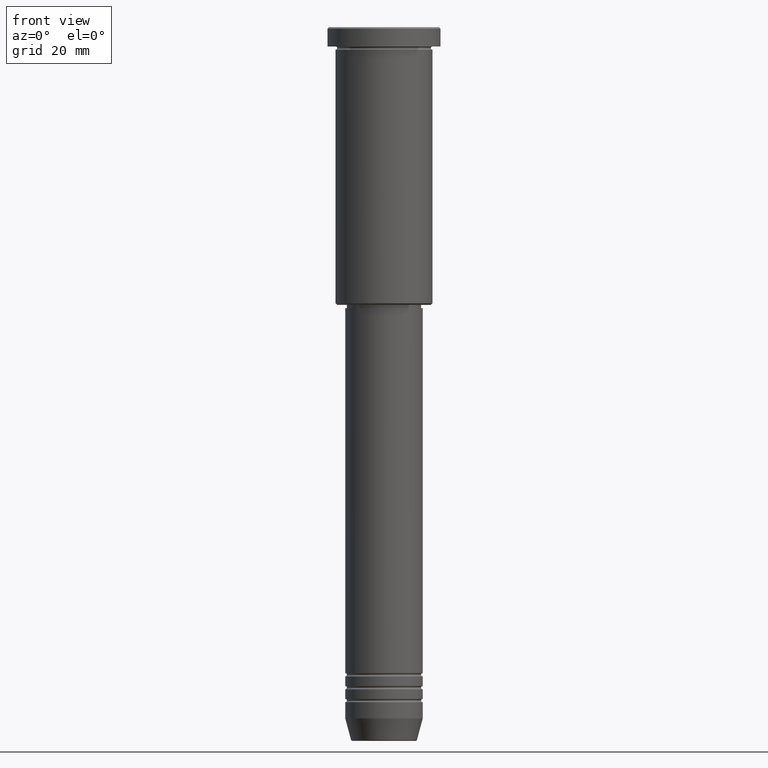
[diagram: clean part render]
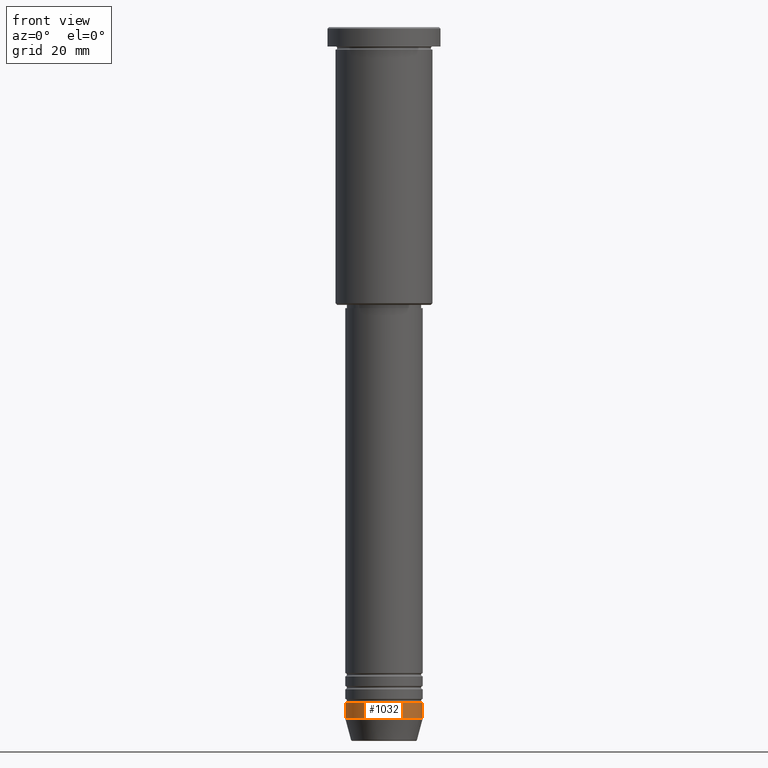
[diagram: same view with one face highlighted and labeled with its STEP entity id]
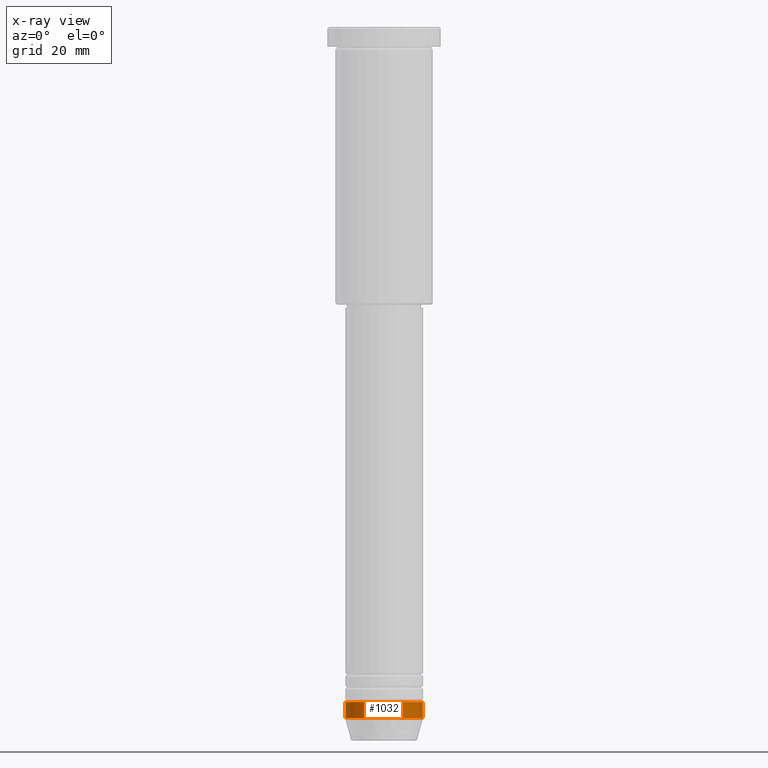
[diagram: x-ray of the same camera — body ghosted, the highlighted face saturated]
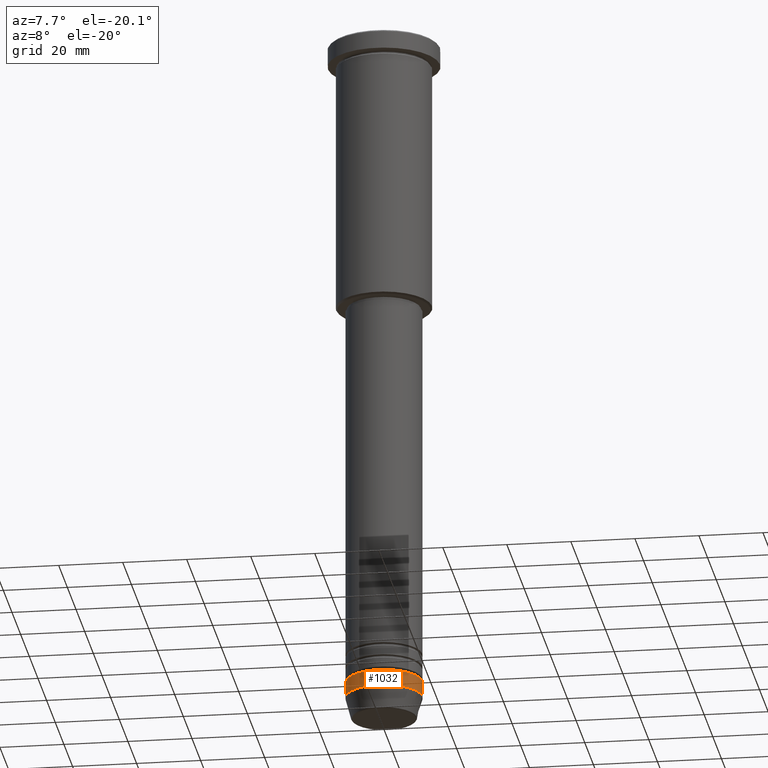
[diagram: same view with one face highlighted and labeled with its STEP entity id]
A machine part, front view. The second image highlights one B-rep face of the part: STEP entity #1032.
The next image is the same camera in x-ray: the body ghosted, the highlighted face saturated — about 0% of this face is hidden behind the body in this view.
A second angle (auxiliary view) of the same face is appended — the face is thin or edge-on in the first view.
In plain terms, the highlighted cylindrical surface (partial cylindrical patch) has radius 12 mm, axis along (-0, -0, 1).
Its self-contained STEP definition (entity closure, byte-faithful):
#14 = AXIS2_PLACEMENT_3D ( 'NONE', #794, #256, #996 ) ;
#91 = CIRCLE ( 'NONE', #14, 12.00000000000000000 ) ;
#160 = EDGE_CURVE ( 'NONE', #961, #826, #588, .T. ) ;
#189 = CARTESIAN_POINT ( 'NONE',  ( -12.00000000000000000, 1.469576158976823947E-15, -209.0000000000000568 ) ) ;
#195 = CIRCLE ( 'NONE', #347, 12.00000000000000000 ) ;
#201 = LINE ( 'NONE', #288, #270 ) ;
#211 = VECTOR ( 'NONE', #797, 1000.000000000000000 ) ;
#226 = CARTESIAN_POINT ( 'NONE',  ( -12.00000000000000000, 1.469576158976823947E-15, -214.0000000000000284 ) ) ;
#253 = AXIS2_PLACEMENT_3D ( 'NONE', #765, #486, #595 ) ;
#256 = DIRECTION ( 'NONE',  ( -0.000000000000000000, -0.000000000000000000, 1.000000000000000000 ) ) ;
#266 = VERTEX_POINT ( 'NONE', #915 ) ;
#270 = VECTOR ( 'NONE', #657, 1000.000000000000000 ) ;
#288 = CARTESIAN_POINT ( 'NONE',  ( 12.00000000000000000, 0.000000000000000000, 0.000000000000000000 ) ) ;
#333 = ORIENTED_EDGE ( 'NONE', *, *, #160, .F. ) ;
#347 = AXIS2_PLACEMENT_3D ( 'NONE', #655, #364, #832 ) ;
#364 = DIRECTION ( 'NONE',  ( -0.000000000000000000, -0.000000000000000000, 1.000000000000000000 ) ) ;
#395 = CYLINDRICAL_SURFACE ( 'NONE', #253, 12.00000000000000000 ) ;
#399 = EDGE_CURVE ( 'NONE', #855, #266, #201, .T. ) ;
#480 = ORIENTED_EDGE ( 'NONE', *, *, #399, .T. ) ;
#486 = DIRECTION ( 'NONE',  ( -0.000000000000000000, -0.000000000000000000, 1.000000000000000000 ) ) ;
#588 = LINE ( 'NONE', #774, #211 ) ;
#595 = DIRECTION ( 'NONE',  ( 1.000000000000000000, 0.000000000000000000, 0.000000000000000000 ) ) ;
#644 = CARTESIAN_POINT ( 'NONE',  ( 12.00000000000000000, 0.000000000000000000, -214.0000000000000284 ) ) ;
#646 = EDGE_LOOP ( 'NONE', ( #333, #684, #480, #931 ) ) ;
#655 = CARTESIAN_POINT ( 'NONE',  ( 0.000000000000000000, 0.000000000000000000, -209.0000000000000568 ) ) ;
#657 = DIRECTION ( 'NONE',  ( -0.000000000000000000, -0.000000000000000000, 1.000000000000000000 ) ) ;
#684 = ORIENTED_EDGE ( 'NONE', *, *, #1168, .T. ) ;
#765 = CARTESIAN_POINT ( 'NONE',  ( 0.000000000000000000, 0.000000000000000000, 0.000000000000000000 ) ) ;
#774 = CARTESIAN_POINT ( 'NONE',  ( -12.00000000000000000, 1.469576158976823947E-15, 0.000000000000000000 ) ) ;
#794 = CARTESIAN_POINT ( 'NONE',  ( 0.000000000000000000, 0.000000000000000000, -214.0000000000000284 ) ) ;
#797 = DIRECTION ( 'NONE',  ( -0.000000000000000000, -0.000000000000000000, 1.000000000000000000 ) ) ;
#826 = VERTEX_POINT ( 'NONE', #189 ) ;
#830 = EDGE_CURVE ( 'NONE', #826, #266, #195, .T. ) ;
#832 = DIRECTION ( 'NONE',  ( 1.000000000000000000, 0.000000000000000000, 0.000000000000000000 ) ) ;
#855 = VERTEX_POINT ( 'NONE', #644 ) ;
#856 = FACE_OUTER_BOUND ( 'NONE', #646, .T. ) ;
#915 = CARTESIAN_POINT ( 'NONE',  ( 12.00000000000000000, 0.000000000000000000, -209.0000000000000568 ) ) ;
#931 = ORIENTED_EDGE ( 'NONE', *, *, #830, .F. ) ;
#961 = VERTEX_POINT ( 'NONE', #226 ) ;
#996 = DIRECTION ( 'NONE',  ( 1.000000000000000000, 0.000000000000000000, 0.000000000000000000 ) ) ;
#1032 = ADVANCED_FACE ( 'NONE', ( #856 ), #395, .T. ) ;
#1168 = EDGE_CURVE ( 'NONE', #961, #855, #91, .T. ) ;